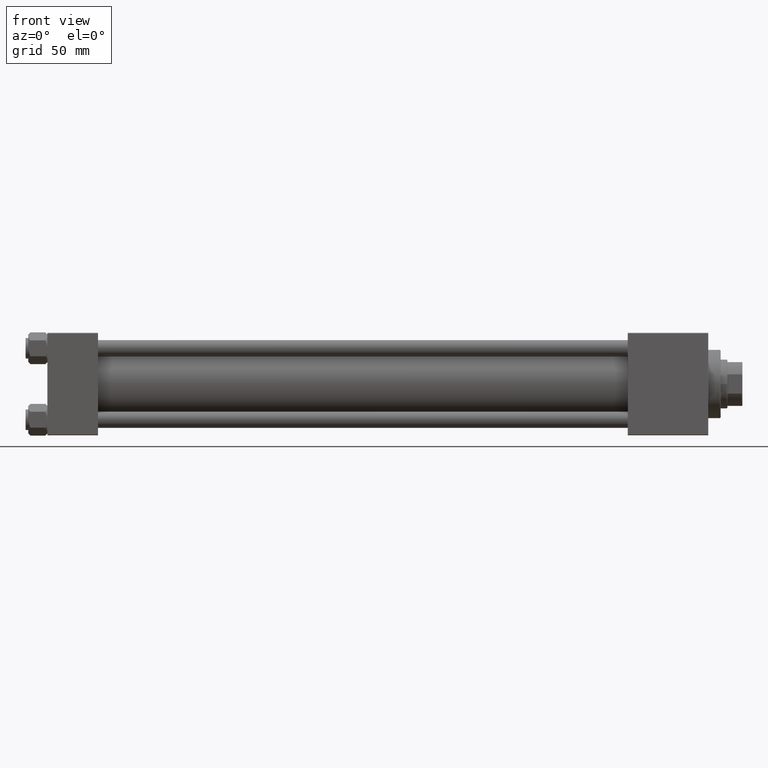
[diagram: clean part render]
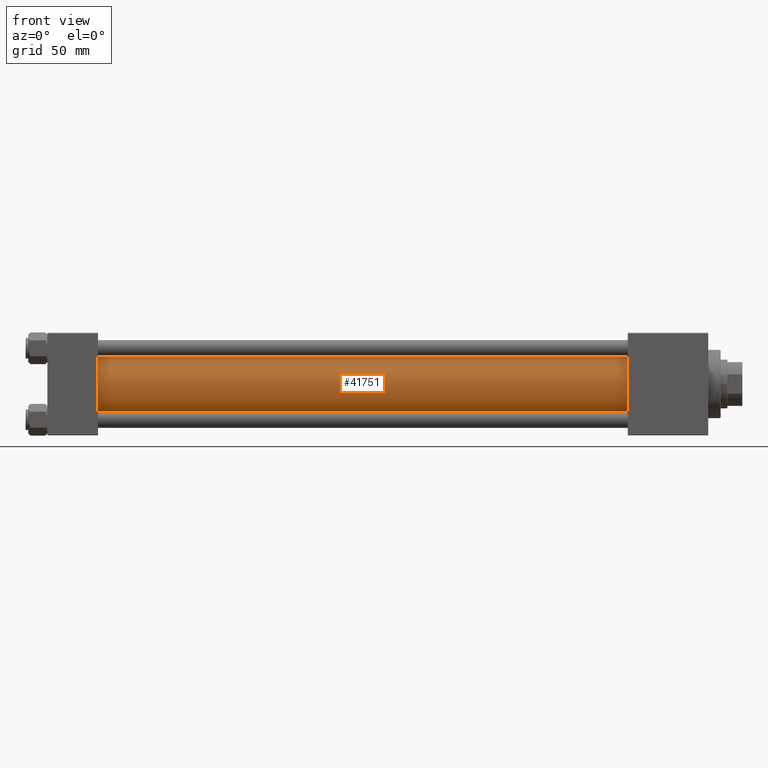
[diagram: same view with one face highlighted and labeled with its STEP entity id]
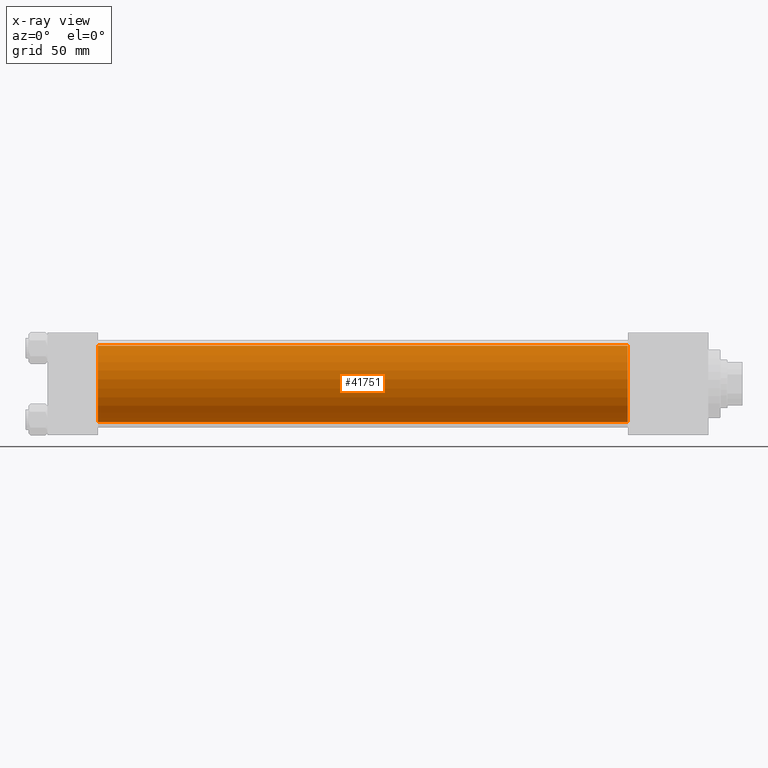
[diagram: x-ray of the same camera — body ghosted, the highlighted face saturated]
A machine part, front view. The second image highlights one B-rep face of the part: STEP entity #41751.
The next image is the same camera in x-ray: the body ghosted, the highlighted face saturated — about 0% of this face is hidden behind the body in this view.
In plain terms, the highlighted cylindrical surface (partial cylindrical patch) has radius 28 mm, axis along (-1, -0, -0).
Its self-contained STEP definition (entity closure, byte-faithful):
#82 = CYLINDRICAL_SURFACE ( 'NONE', #6866, 28.00000000000000000 ) ;
#341 = AXIS2_PLACEMENT_3D ( 'NONE', #22497, #3436, #37990 ) ;
#1073 = CARTESIAN_POINT ( 'NONE',  ( 36.99999999999997868, -2.602085213965210642E-15, 0.000000000000000000 ) ) ;
#1779 = CARTESIAN_POINT ( 'NONE',  ( 36.99999999999997868, 8.269258236473776482E-16, -28.00000000000000000 ) ) ;
#2492 = CARTESIAN_POINT ( 'NONE',  ( 425.0000000000000000, 8.269258236473776482E-16, -28.00000000000000000 ) ) ;
#3186 = CARTESIAN_POINT ( 'NONE',  ( 425.0000000000000000, 8.269258236473776482E-16, -28.00000000000000000 ) ) ;
#3436 = DIRECTION ( 'NONE',  ( 1.000000000000000000, 0.000000000000000000, 0.000000000000000000 ) ) ;
#3660 = VERTEX_POINT ( 'NONE', #1779 ) ;
#5122 = DIRECTION ( 'NONE',  ( 0.000000000000000000, 0.000000000000000000, 1.000000000000000000 ) ) ;
#5373 = ORIENTED_EDGE ( 'NONE', *, *, #41919, .T. ) ;
#5844 = EDGE_CURVE ( 'NONE', #32123, #3660, #41472, .T. ) ;
#6866 = AXIS2_PLACEMENT_3D ( 'NONE', #31053, #46529, #7960 ) ;
#7960 = DIRECTION ( 'NONE',  ( 0.000000000000000000, 0.000000000000000000, 1.000000000000000000 ) ) ;
#14214 = EDGE_LOOP ( 'NONE', ( #34182, #27493, #5373, #34988 ) ) ;
#19011 = CIRCLE ( 'NONE', #341, 28.00000000000000000 ) ;
#19383 = FACE_OUTER_BOUND ( 'NONE', #14214, .T. ) ;
#21736 = EDGE_CURVE ( 'NONE', #42666, #3660, #38730, .T. ) ;
#22010 = AXIS2_PLACEMENT_3D ( 'NONE', #1073, #39921, #5122 ) ;
#22497 = CARTESIAN_POINT ( 'NONE',  ( 425.0000000000000000, -2.602085213965210642E-15, 0.000000000000000000 ) ) ;
#23200 = VERTEX_POINT ( 'NONE', #45005 ) ;
#23670 = CARTESIAN_POINT ( 'NONE',  ( 36.99999999999997868, -2.602085213965210642E-15, 28.00000000000000000 ) ) ;
#27029 = LINE ( 'NONE', #27519, #33627 ) ;
#27493 = ORIENTED_EDGE ( 'NONE', *, *, #40468, .F. ) ;
#27519 = CARTESIAN_POINT ( 'NONE',  ( 425.0000000000000000, -2.602085213965210642E-15, 28.00000000000000000 ) ) ;
#31053 = CARTESIAN_POINT ( 'NONE',  ( 425.0000000000000000, -2.602085213965210642E-15, 0.000000000000000000 ) ) ;
#32123 = VERTEX_POINT ( 'NONE', #23670 ) ;
#32957 = VECTOR ( 'NONE', #37981, 1000.000000000000000 ) ;
#33627 = VECTOR ( 'NONE', #39205, 1000.000000000000000 ) ;
#34182 = ORIENTED_EDGE ( 'NONE', *, *, #21736, .F. ) ;
#34988 = ORIENTED_EDGE ( 'NONE', *, *, #5844, .T. ) ;
#37981 = DIRECTION ( 'NONE',  ( -1.000000000000000000, -0.000000000000000000, -0.000000000000000000 ) ) ;
#37990 = DIRECTION ( 'NONE',  ( 0.000000000000000000, 0.000000000000000000, -1.000000000000000000 ) ) ;
#38730 = LINE ( 'NONE', #3186, #32957 ) ;
#39205 = DIRECTION ( 'NONE',  ( -1.000000000000000000, -0.000000000000000000, -0.000000000000000000 ) ) ;
#39921 = DIRECTION ( 'NONE',  ( 1.000000000000000000, -0.000000000000000000, 0.000000000000000000 ) ) ;
#40468 = EDGE_CURVE ( 'NONE', #23200, #42666, #19011, .T. ) ;
#41472 = CIRCLE ( 'NONE', #22010, 28.00000000000000000 ) ;
#41751 = ADVANCED_FACE ( 'NONE', ( #19383 ), #82, .T. ) ;
#41919 = EDGE_CURVE ( 'NONE', #23200, #32123, #27029, .T. ) ;
#42666 = VERTEX_POINT ( 'NONE', #2492 ) ;
#45005 = CARTESIAN_POINT ( 'NONE',  ( 425.0000000000000000, -2.602085213965210642E-15, 28.00000000000000000 ) ) ;
#46529 = DIRECTION ( 'NONE',  ( -1.000000000000000000, -0.000000000000000000, -0.000000000000000000 ) ) ;